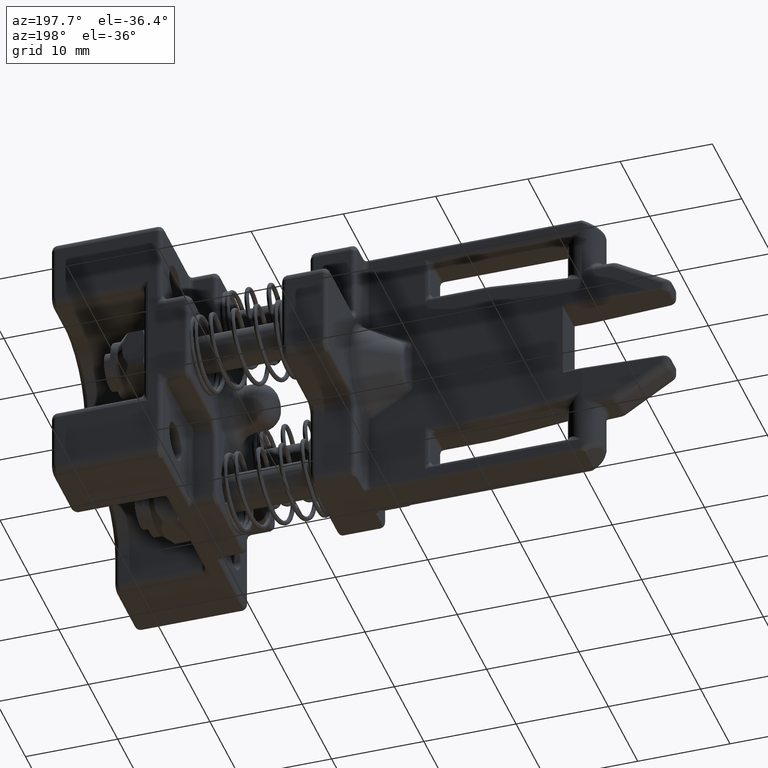
[diagram: clean part render]
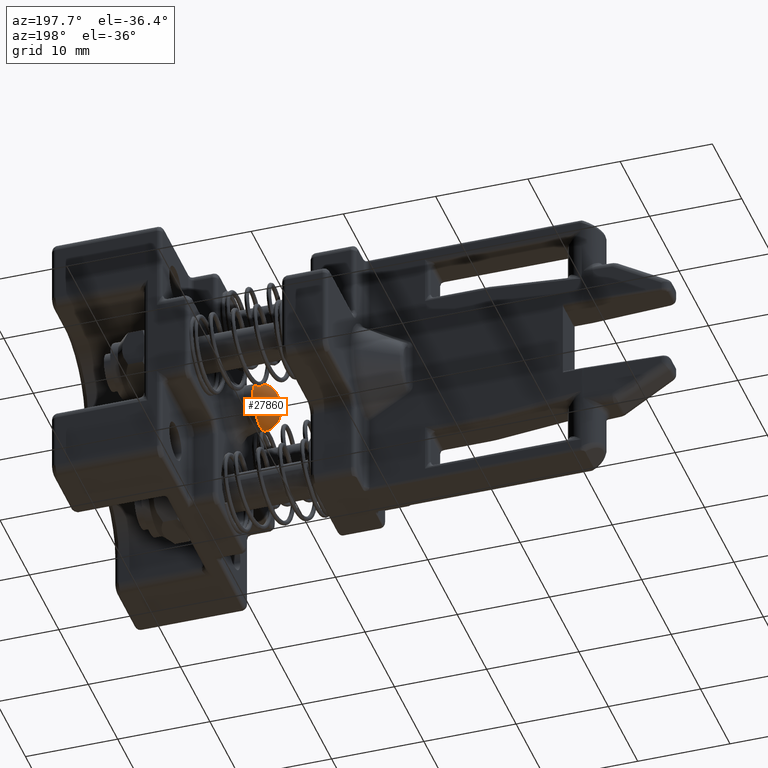
[diagram: same view with one face highlighted and labeled with its STEP entity id]
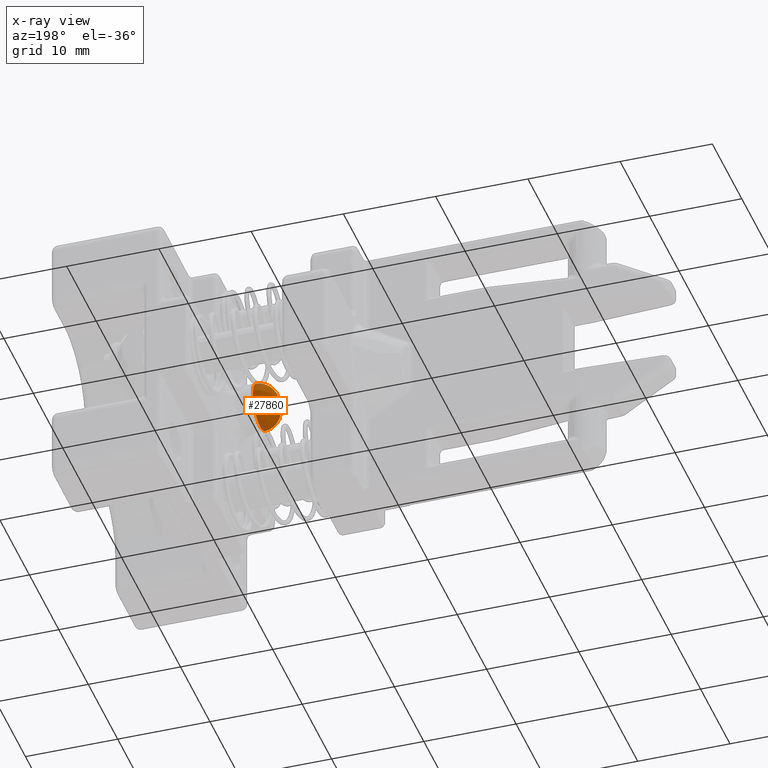
[diagram: x-ray of the same camera — body ghosted, the highlighted face saturated]
A machine part, auxiliary view. The second image highlights one B-rep face of the part: STEP entity #27860.
The next image is the same camera in x-ray: the body ghosted, the highlighted face saturated — about 2% of this face is hidden behind the body in this view.
In plain terms, the highlighted toroidal blend (fillet) surface has major radius 0.5 mm and minor (blend) radius 2 mm.
Its self-contained STEP definition (entity closure, byte-faithful):
#1071 = EDGE_CURVE ( 'NONE', #21723, #21723, #36017, .T. ) ;
#3328 = DIRECTION ( 'NONE',  ( 1.000000000000000000, 1.282514000000000100E-016, -1.701640000000000000E-032 ) ) ;
#11007 = DIRECTION ( 'NONE',  ( 0.0000000000000000000, 0.0000000000000000000, 1.000000000000000000 ) ) ;
#11123 = AXIS2_PLACEMENT_3D ( 'NONE', #31040, #3328, #24803 ) ;
#13029 = AXIS2_PLACEMENT_3D ( 'NONE', #36967, #39839, #18544 ) ;
#17674 = FACE_OUTER_BOUND ( 'NONE', #19142, .T. ) ;
#17775 = CARTESIAN_POINT ( 'NONE',  ( 0.5895669291338578900, -0.09842519309577084400, 1.290651929133858400E-009 ) ) ;
#18544 = DIRECTION ( 'NONE',  ( 0.0000000000000000000, 0.0000000000000000000, 1.000000000000000000 ) ) ;
#18699 = ORIENTED_EDGE ( 'NONE', *, *, #1071, .T. ) ;
#19142 = EDGE_LOOP ( 'NONE', ( #18699 ) ) ;
#21723 = VERTEX_POINT ( 'NONE', #27531 ) ;
#21848 = EDGE_CURVE ( 'NONE', #24192, #24192, #33333, .T. ) ;
#24192 = VERTEX_POINT ( 'NONE', #17775 ) ;
#24803 = DIRECTION ( 'NONE',  ( 0.0000000000000000000, -1.000000000000000000, 0.0000000000000000000 ) ) ;
#25905 = FACE_OUTER_BOUND ( 'NONE', #27401, .T. ) ;
#27401 = EDGE_LOOP ( 'NONE', ( #37591 ) ) ;
#27531 = CARTESIAN_POINT ( 'NONE',  ( 0.5108267716535429500, 3.754622834645669200E-009, 0.01968504066073067600 ) ) ;
#27860 = ADVANCED_FACE ( 'NONE', ( #25905, #17674 ), #34155, .T. ) ;
#31040 = CARTESIAN_POINT ( 'NONE',  ( 0.5895669291338578900, 3.754622858867945400E-009, 1.290651929133858400E-009 ) ) ;
#33333 = CIRCLE ( 'NONE', #11123, 0.09842519685039370600 ) ;
#34155 = TOROIDAL_SURFACE ( 'NONE', #37736, 0.01968503937007880900, 0.07874015748031477900 ) ;
#36017 = CIRCLE ( 'NONE', #13029, 0.01968503937007874700 ) ;
#36105 = CARTESIAN_POINT ( 'NONE',  ( 0.5895669291338576600, 3.754622834645669200E-009, 1.290651929231428600E-009 ) ) ;
#36967 = CARTESIAN_POINT ( 'NONE',  ( 0.5108267716535429500, 3.754622834645669200E-009, 1.290651929231428600E-009 ) ) ;
#37591 = ORIENTED_EDGE ( 'NONE', *, *, #21848, .F. ) ;
#37736 = AXIS2_PLACEMENT_3D ( 'NONE', #36105, #38948, #11007 ) ;
#38948 = DIRECTION ( 'NONE',  ( -1.000000000000000000, 0.0000000000000000000, 0.0000000000000000000 ) ) ;
#39839 = DIRECTION ( 'NONE',  ( 1.000000000000000000, -0.0000000000000000000, -0.0000000000000000000 ) ) ;